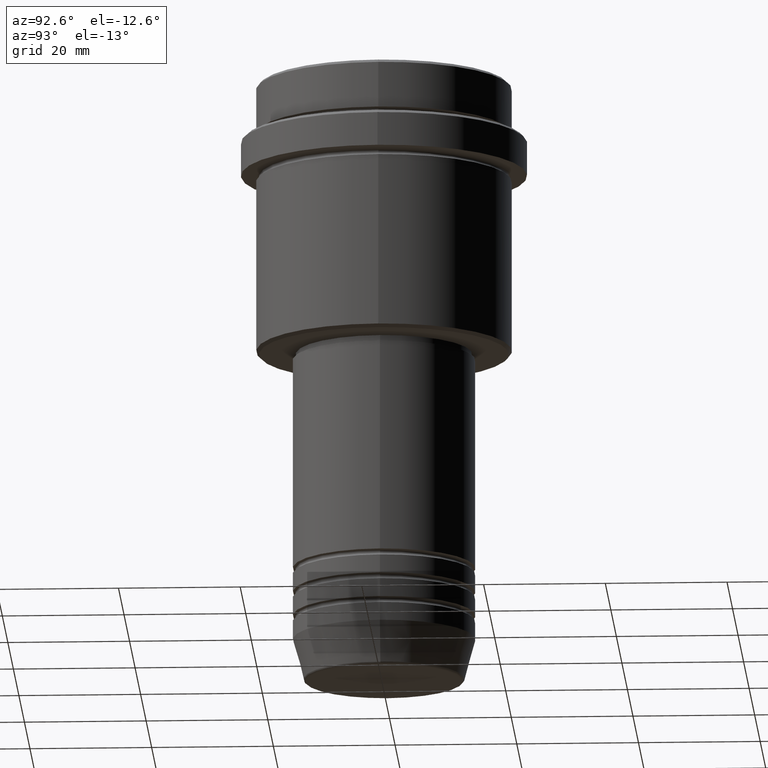
[diagram: clean part render]
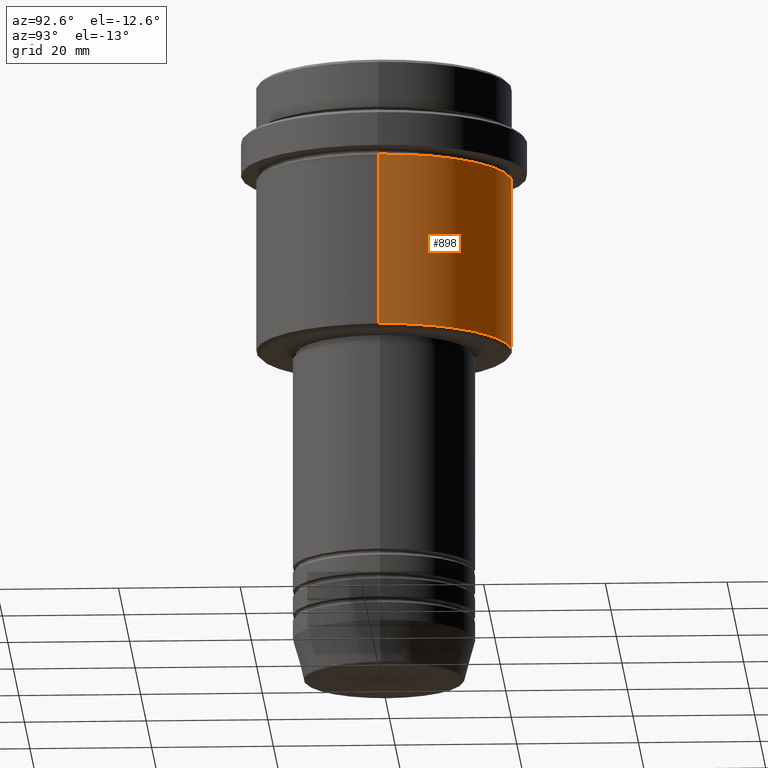
[diagram: same view with one face highlighted and labeled with its STEP entity id]
A machine part, auxiliary view. The second image highlights one B-rep face of the part: STEP entity #898.
In plain terms, the highlighted cylindrical surface (partial cylindrical patch) has radius 21 mm, axis along (-0, -0, 1).
Its self-contained STEP definition (entity closure, byte-faithful):
#22 = DIRECTION ( 'NONE',  ( -0.000000000000000000, -0.000000000000000000, 1.000000000000000000 ) ) ;
#26 = VERTEX_POINT ( 'NONE', #810 ) ;
#53 = EDGE_CURVE ( 'NONE', #329, #796, #801, .T. ) ;
#83 = DIRECTION ( 'NONE',  ( -0.000000000000000000, -0.000000000000000000, 1.000000000000000000 ) ) ;
#102 = CARTESIAN_POINT ( 'NONE',  ( 21.00000000000000000, 0.000000000000000000, -44.50000000000001421 ) ) ;
#174 = DIRECTION ( 'NONE',  ( 1.000000000000000000, 0.000000000000000000, 0.000000000000000000 ) ) ;
#237 = VECTOR ( 'NONE', #675, 1000.000000000000000 ) ;
#239 = ORIENTED_EDGE ( 'NONE', *, *, #1369, .T. ) ;
#260 = CIRCLE ( 'NONE', #1006, 21.00000000000000000 ) ;
#265 = LINE ( 'NONE', #789, #237 ) ;
#329 = VERTEX_POINT ( 'NONE', #102 ) ;
#336 = VERTEX_POINT ( 'NONE', #1282 ) ;
#341 = CARTESIAN_POINT ( 'NONE',  ( 0.000000000000000000, 0.000000000000000000, -16.00000000000000355 ) ) ;
#379 = DIRECTION ( 'NONE',  ( 1.000000000000000000, 0.000000000000000000, 0.000000000000000000 ) ) ;
#405 = FACE_OUTER_BOUND ( 'NONE', #530, .T. ) ;
#441 = ORIENTED_EDGE ( 'NONE', *, *, #637, .F. ) ;
#507 = DIRECTION ( 'NONE',  ( -0.000000000000000000, -0.000000000000000000, 1.000000000000000000 ) ) ;
#518 = CARTESIAN_POINT ( 'NONE',  ( 0.000000000000000000, 0.000000000000000000, -44.50000000000001421 ) ) ;
#530 = EDGE_LOOP ( 'NONE', ( #1319, #239, #805, #441 ) ) ;
#586 = AXIS2_PLACEMENT_3D ( 'NONE', #518, #507, #1071 ) ;
#603 = EDGE_CURVE ( 'NONE', #336, #26, #260, .T. ) ;
#608 = CARTESIAN_POINT ( 'NONE',  ( -21.00000000000000000, 2.571758278209441661E-15, -44.50000000000001421 ) ) ;
#613 = CYLINDRICAL_SURFACE ( 'NONE', #641, 21.00000000000000000 ) ;
#637 = EDGE_CURVE ( 'NONE', #329, #336, #265, .T. ) ;
#641 = AXIS2_PLACEMENT_3D ( 'NONE', #830, #1023, #379 ) ;
#675 = DIRECTION ( 'NONE',  ( -0.000000000000000000, -0.000000000000000000, 1.000000000000000000 ) ) ;
#789 = CARTESIAN_POINT ( 'NONE',  ( 21.00000000000000000, 0.000000000000000000, 0.000000000000000000 ) ) ;
#796 = VERTEX_POINT ( 'NONE', #608 ) ;
#801 = CIRCLE ( 'NONE', #586, 21.00000000000000000 ) ;
#805 = ORIENTED_EDGE ( 'NONE', *, *, #603, .F. ) ;
#810 = CARTESIAN_POINT ( 'NONE',  ( -21.00000000000000000, 2.571758278209441661E-15, -16.00000000000000355 ) ) ;
#830 = CARTESIAN_POINT ( 'NONE',  ( 0.000000000000000000, 0.000000000000000000, 0.000000000000000000 ) ) ;
#898 = ADVANCED_FACE ( 'NONE', ( #405 ), #613, .T. ) ;
#966 = VECTOR ( 'NONE', #83, 1000.000000000000000 ) ;
#1006 = AXIS2_PLACEMENT_3D ( 'NONE', #341, #22, #174 ) ;
#1023 = DIRECTION ( 'NONE',  ( -0.000000000000000000, -0.000000000000000000, 1.000000000000000000 ) ) ;
#1034 = LINE ( 'NONE', #1366, #966 ) ;
#1071 = DIRECTION ( 'NONE',  ( -1.000000000000000000, 0.000000000000000000, 0.000000000000000000 ) ) ;
#1282 = CARTESIAN_POINT ( 'NONE',  ( 21.00000000000000000, 0.000000000000000000, -16.00000000000000355 ) ) ;
#1319 = ORIENTED_EDGE ( 'NONE', *, *, #53, .T. ) ;
#1366 = CARTESIAN_POINT ( 'NONE',  ( -21.00000000000000000, 2.571758278209441661E-15, 0.000000000000000000 ) ) ;
#1369 = EDGE_CURVE ( 'NONE', #796, #26, #1034, .T. ) ;